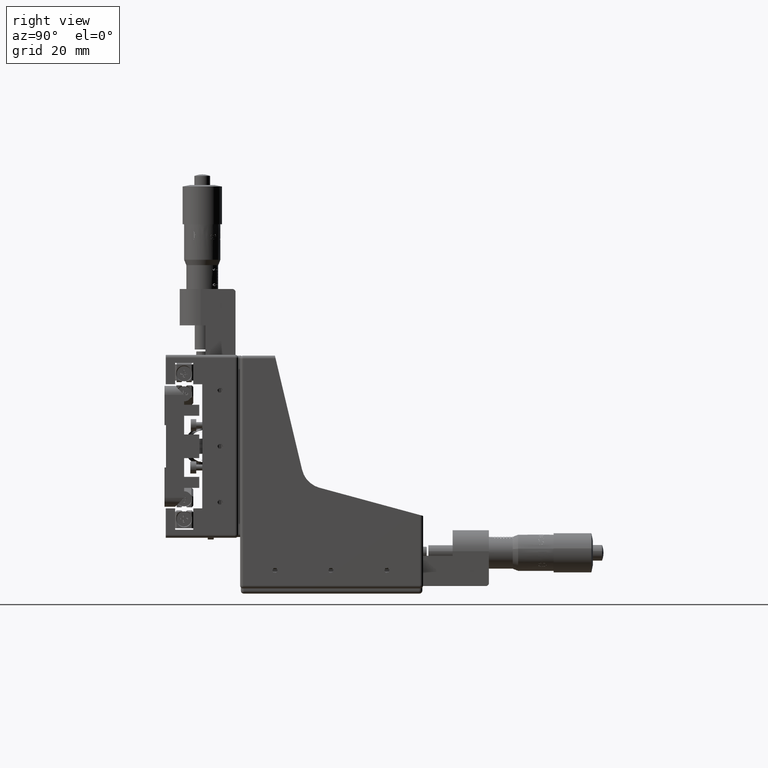
[diagram: clean part render]
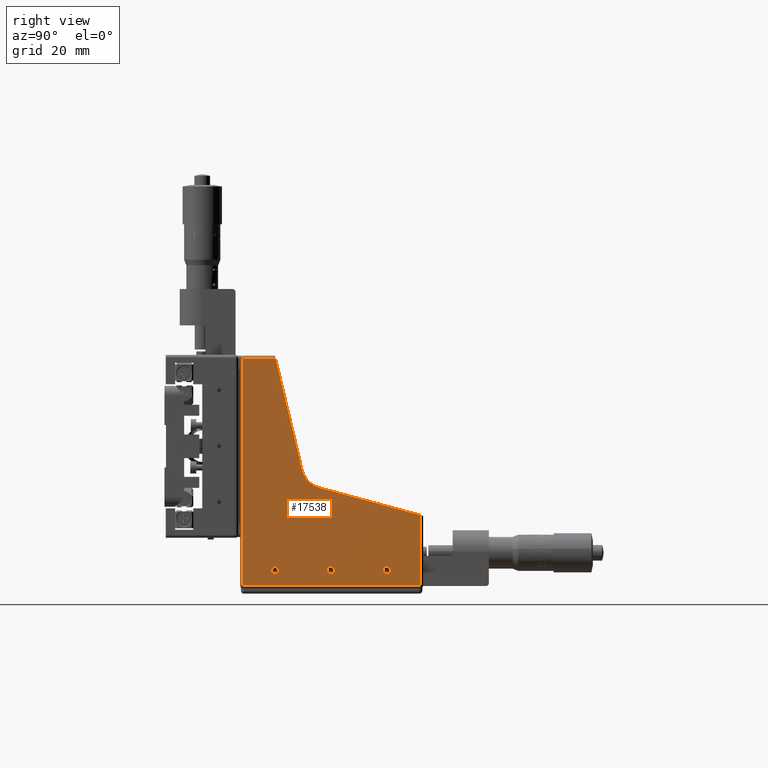
[diagram: same view with one face highlighted and labeled with its STEP entity id]
A machine part, right view. The second image highlights one B-rep face of the part: STEP entity #17538.
In plain terms, the highlighted planar face has unit normal (1, 0, 0).
Its self-contained STEP definition (entity closure, byte-faithful):
#973 = LINE ( 'NONE', #14485, #74682 ) ;
#1190 = FACE_BOUND ( 'NONE', #7956, .T. ) ;
#1480 = EDGE_CURVE ( 'NONE', #83309, #7336, #90027, .T. ) ;
#1643 = DIRECTION ( 'NONE',  ( 0.0000000000000000000, -1.000000000000000000, 0.0000000000000000000 ) ) ;
#3112 = CARTESIAN_POINT ( 'NONE',  ( 38.56603255245601500, 46.11820798943613700, -35.24247405631722100 ) ) ;
#3463 = DIRECTION ( 'NONE',  ( 0.0000000000000000000, 0.0000000000000000000, -1.000000000000000000 ) ) ;
#4651 = ORIENTED_EDGE ( 'NONE', *, *, #6070, .T. ) ;
#4700 = CARTESIAN_POINT ( 'NONE',  ( 38.56603255245601500, 46.11820798943613700, -37.74247405631722100 ) ) ;
#6070 = EDGE_CURVE ( 'NONE', #83793, #15909, #35022, .T. ) ;
#6754 = VERTEX_POINT ( 'NONE', #53957 ) ;
#6909 = AXIS2_PLACEMENT_3D ( 'NONE', #60717, #17874, #67858 ) ;
#7336 = VERTEX_POINT ( 'NONE', #13824 ) ;
#7821 = CARTESIAN_POINT ( 'NONE',  ( 38.56603255245601500, 17.11820798943613700, -1.452474056317216900 ) ) ;
#7956 = EDGE_LOOP ( 'NONE', ( #79990, #64029 ) ) ;
#8091 = AXIS2_PLACEMENT_3D ( 'NONE', #80952, #38221, #88112 ) ;
#9063 = CARTESIAN_POINT ( 'NONE',  ( 38.56603255245601500, 44.40841101942705600, -1.452474056317216900 ) ) ;
#9919 = AXIS2_PLACEMENT_3D ( 'NONE', #9063, #59055, #16257 ) ;
#10879 = DIRECTION ( 'NONE',  ( 0.0000000000000000000, -0.9650248887684033100, 0.2621582805435118700 ) ) ;
#12453 = DIRECTION ( 'NONE',  ( 1.000000000000000000, -0.0000000000000000000, -0.0000000000000000000 ) ) ;
#13379 = EDGE_LOOP ( 'NONE', ( #24022, #50139 ) ) ;
#13824 = CARTESIAN_POINT ( 'NONE',  ( 38.56603255245601500, 64.61820798943614400, -35.24247405631722100 ) ) ;
#14485 = CARTESIAN_POINT ( 'NONE',  ( 38.56603255245601500, 75.61820798943614400, -1.452474056317216900 ) ) ;
#15909 = VERTEX_POINT ( 'NONE', #65688 ) ;
#16257 = DIRECTION ( 'NONE',  ( 0.0000000000000000000, 0.0000000000000000000, -1.000000000000000000 ) ) ;
#16708 = CIRCLE ( 'NONE', #57287, 1.250000000000001100 ) ;
#17538 = ADVANCED_FACE ( 'NONE', ( #1190, #22418, #74898, #55922 ), #51568, .T. ) ;
#17874 = DIRECTION ( 'NONE',  ( -1.000000000000000000, -0.0000000000000000000, -0.0000000000000000000 ) ) ;
#18394 = VERTEX_POINT ( 'NONE', #60397 ) ;
#19926 = ORIENTED_EDGE ( 'NONE', *, *, #62150, .T. ) ;
#20328 = EDGE_CURVE ( 'NONE', #25581, #31984, #88103, .T. ) ;
#22418 = FACE_BOUND ( 'NONE', #59861, .T. ) ;
#22432 = CIRCLE ( 'NONE', #51330, 1.250000000000001100 ) ;
#22903 = ORIENTED_EDGE ( 'NONE', *, *, #42955, .T. ) ;
#24022 = ORIENTED_EDGE ( 'NONE', *, *, #51709, .F. ) ;
#24042 = ORIENTED_EDGE ( 'NONE', *, *, #44062, .F. ) ;
#25581 = VERTEX_POINT ( 'NONE', #3112 ) ;
#26932 = CARTESIAN_POINT ( 'NONE',  ( 38.56603255245601500, 27.61820798943613300, -36.49247405631722100 ) ) ;
#27038 = AXIS2_PLACEMENT_3D ( 'NONE', #75731, #33031, #82902 ) ;
#27210 = VECTOR ( 'NONE', #10879, 1000.000000000000200 ) ;
#27265 = CIRCLE ( 'NONE', #8091, 1.250000000000001100 ) ;
#30409 = EDGE_CURVE ( 'NONE', #15909, #18394, #34397, .T. ) ;
#31670 = CARTESIAN_POINT ( 'NONE',  ( 38.56603255245601500, 42.31120798943612000, -9.172690338973867000 ) ) ;
#31984 = VERTEX_POINT ( 'NONE', #4700 ) ;
#32809 = VECTOR ( 'NONE', #57776, 1000.000000000000000 ) ;
#33031 = DIRECTION ( 'NONE',  ( 1.000000000000000000, -0.0000000000000000000, -0.0000000000000000000 ) ) ;
#34139 = DIRECTION ( 'NONE',  ( 0.0000000000000000000, 0.0000000000000000000, -1.000000000000000000 ) ) ;
#34397 = LINE ( 'NONE', #90246, #89063 ) ;
#34794 = LINE ( 'NONE', #37209, #51586 ) ;
#35022 = LINE ( 'NONE', #7821, #32809 ) ;
#35825 = CARTESIAN_POINT ( 'NONE',  ( 38.56603255245601500, 36.62620798943612500, -3.306474056317211500 ) ) ;
#36602 = CIRCLE ( 'NONE', #6909, 8.000000000000000000 ) ;
#37209 = CARTESIAN_POINT ( 'NONE',  ( 38.56603255245601500, 44.40841101942705600, 33.50752594368277900 ) ) ;
#38221 = DIRECTION ( 'NONE',  ( 1.000000000000000000, -0.0000000000000000000, -0.0000000000000000000 ) ) ;
#38975 = ORIENTED_EDGE ( 'NONE', *, *, #40661, .T. ) ;
#40661 = EDGE_CURVE ( 'NONE', #6754, #59793, #67460, .T. ) ;
#41517 = CARTESIAN_POINT ( 'NONE',  ( 38.56603255245601500, 46.11820798943613700, -36.49247405631722100 ) ) ;
#42955 = EDGE_CURVE ( 'NONE', #18394, #6754, #973, .T. ) ;
#43973 = CARTESIAN_POINT ( 'NONE',  ( 38.56603255245601500, 64.61820798943614400, -37.74247405631722100 ) ) ;
#44062 = EDGE_CURVE ( 'NONE', #31984, #25581, #68873, .T. ) ;
#45886 = ORIENTED_EDGE ( 'NONE', *, *, #30409, .T. ) ;
#46250 = DIRECTION ( 'NONE',  ( 1.000000000000000000, -0.0000000000000000000, -0.0000000000000000000 ) ) ;
#47896 = DIRECTION ( 'NONE',  ( -0.0000000000000000000, 1.000000000000000000, 0.0000000000000000000 ) ) ;
#48119 = CARTESIAN_POINT ( 'NONE',  ( 38.56603255245601500, 27.61820798943613300, -35.24247405631722100 ) ) ;
#48168 = LINE ( 'NONE', #60567, #69383 ) ;
#48708 = DIRECTION ( 'NONE',  ( 0.0000000000000000000, 0.0000000000000000000, -1.000000000000000000 ) ) ;
#49964 = EDGE_CURVE ( 'NONE', #66492, #49974, #27265, .T. ) ;
#49974 = VERTEX_POINT ( 'NONE', #66649 ) ;
#50139 = ORIENTED_EDGE ( 'NONE', *, *, #49964, .F. ) ;
#51330 = AXIS2_PLACEMENT_3D ( 'NONE', #26932, #76839, #34139 ) ;
#51568 = PLANE ( 'NONE',  #9919 ) ;
#51586 = VECTOR ( 'NONE', #1643, 1000.000000000000000 ) ;
#51709 = EDGE_CURVE ( 'NONE', #49974, #66492, #22432, .T. ) ;
#52100 = EDGE_CURVE ( 'NONE', #7336, #83309, #16708, .T. ) ;
#53793 = VERTEX_POINT ( 'NONE', #35825 ) ;
#53901 = EDGE_CURVE ( 'NONE', #53793, #61658, #48168, .T. ) ;
#53957 = CARTESIAN_POINT ( 'NONE',  ( 38.56603255245601500, 75.61820798943614400, -18.22085681808555800 ) ) ;
#55209 = CARTESIAN_POINT ( 'NONE',  ( 38.56603255245601500, 46.11820798943613700, -36.49247405631722100 ) ) ;
#55922 = FACE_OUTER_BOUND ( 'NONE', #88808, .T. ) ;
#57287 = AXIS2_PLACEMENT_3D ( 'NONE', #88937, #46250, #3463 ) ;
#57558 = DIRECTION ( 'NONE',  ( 0.0000000000000000000, 0.0000000000000000000, 1.000000000000000000 ) ) ;
#57776 = DIRECTION ( 'NONE',  ( 0.0000000000000000000, 0.0000000000000000000, -1.000000000000000000 ) ) ;
#57994 = ORIENTED_EDGE ( 'NONE', *, *, #84000, .T. ) ;
#59055 = DIRECTION ( 'NONE',  ( 1.000000000000000000, 0.0000000000000000000, 0.0000000000000000000 ) ) ;
#59269 = ORIENTED_EDGE ( 'NONE', *, *, #53901, .T. ) ;
#59793 = VERTEX_POINT ( 'NONE', #31670 ) ;
#59861 = EDGE_LOOP ( 'NONE', ( #24042, #80322 ) ) ;
#60397 = CARTESIAN_POINT ( 'NONE',  ( 38.56603255245601500, 75.61820798943614400, -41.49247405631721400 ) ) ;
#60567 = CARTESIAN_POINT ( 'NONE',  ( 38.56603255245601500, 27.61847717280216900, 34.50752594368277900 ) ) ;
#60717 = CARTESIAN_POINT ( 'NONE',  ( 38.56603255245601500, 44.40841101942705600, -1.452474056317216900 ) ) ;
#61658 = VERTEX_POINT ( 'NONE', #86603 ) ;
#62150 = EDGE_CURVE ( 'NONE', #61658, #83793, #34794, .T. ) ;
#62437 = DIRECTION ( 'NONE',  ( 0.0000000000000000000, 0.0000000000000000000, -1.000000000000000000 ) ) ;
#63752 = AXIS2_PLACEMENT_3D ( 'NONE', #55209, #12453, #62437 ) ;
#64029 = ORIENTED_EDGE ( 'NONE', *, *, #52100, .F. ) ;
#65688 = CARTESIAN_POINT ( 'NONE',  ( 38.56603255245601500, 17.11820798943613700, -41.49247405631721400 ) ) ;
#66492 = VERTEX_POINT ( 'NONE', #48119 ) ;
#66649 = CARTESIAN_POINT ( 'NONE',  ( 38.56603255245601500, 27.61820798943613300, -37.74247405631722100 ) ) ;
#67460 = LINE ( 'NONE', #89194, #27210 ) ;
#67858 = DIRECTION ( 'NONE',  ( 0.0000000000000000000, 0.0000000000000000000, -1.000000000000000000 ) ) ;
#68873 = CIRCLE ( 'NONE', #63752, 1.250000000000001100 ) ;
#69383 = VECTOR ( 'NONE', #88868, 1000.000000000000200 ) ;
#74682 = VECTOR ( 'NONE', #57558, 1000.000000000000000 ) ;
#74898 = FACE_BOUND ( 'NONE', #13379, .T. ) ;
#75731 = CARTESIAN_POINT ( 'NONE',  ( 38.56603255245601500, 64.61820798943614400, -36.49247405631722100 ) ) ;
#76839 = DIRECTION ( 'NONE',  ( 1.000000000000000000, -0.0000000000000000000, -0.0000000000000000000 ) ) ;
#79691 = CARTESIAN_POINT ( 'NONE',  ( 38.56603255245601500, 17.11820798943613700, 33.50752594368277900 ) ) ;
#79990 = ORIENTED_EDGE ( 'NONE', *, *, #1480, .F. ) ;
#80322 = ORIENTED_EDGE ( 'NONE', *, *, #20328, .F. ) ;
#80744 = AXIS2_PLACEMENT_3D ( 'NONE', #41517, #91336, #48708 ) ;
#80952 = CARTESIAN_POINT ( 'NONE',  ( 38.56603255245601500, 27.61820798943613300, -36.49247405631722100 ) ) ;
#82902 = DIRECTION ( 'NONE',  ( 0.0000000000000000000, 0.0000000000000000000, -1.000000000000000000 ) ) ;
#83309 = VERTEX_POINT ( 'NONE', #43973 ) ;
#83793 = VERTEX_POINT ( 'NONE', #79691 ) ;
#84000 = EDGE_CURVE ( 'NONE', #59793, #53793, #36602, .T. ) ;
#86603 = CARTESIAN_POINT ( 'NONE',  ( 38.56603255245601500, 27.85668870336318300, 33.50752594368277900 ) ) ;
#88103 = CIRCLE ( 'NONE', #80744, 1.250000000000001100 ) ;
#88112 = DIRECTION ( 'NONE',  ( 0.0000000000000000000, 0.0000000000000000000, -1.000000000000000000 ) ) ;
#88808 = EDGE_LOOP ( 'NONE', ( #59269, #19926, #4651, #45886, #22903, #38975, #57994 ) ) ;
#88868 = DIRECTION ( 'NONE',  ( -0.0000000000000000000, -0.2317275839231485200, 0.9727807187897692400 ) ) ;
#88937 = CARTESIAN_POINT ( 'NONE',  ( 38.56603255245601500, 64.61820798943614400, -36.49247405631722100 ) ) ;
#89063 = VECTOR ( 'NONE', #47896, 1000.000000000000000 ) ;
#89194 = CARTESIAN_POINT ( 'NONE',  ( 38.56603255245601500, 76.61820798943614400, -18.49251642354722200 ) ) ;
#90027 = CIRCLE ( 'NONE', #27038, 1.250000000000001100 ) ;
#90246 = CARTESIAN_POINT ( 'NONE',  ( 38.56603255245601500, 44.40841101942705600, -41.49247405631721400 ) ) ;
#91336 = DIRECTION ( 'NONE',  ( 1.000000000000000000, -0.0000000000000000000, -0.0000000000000000000 ) ) ;